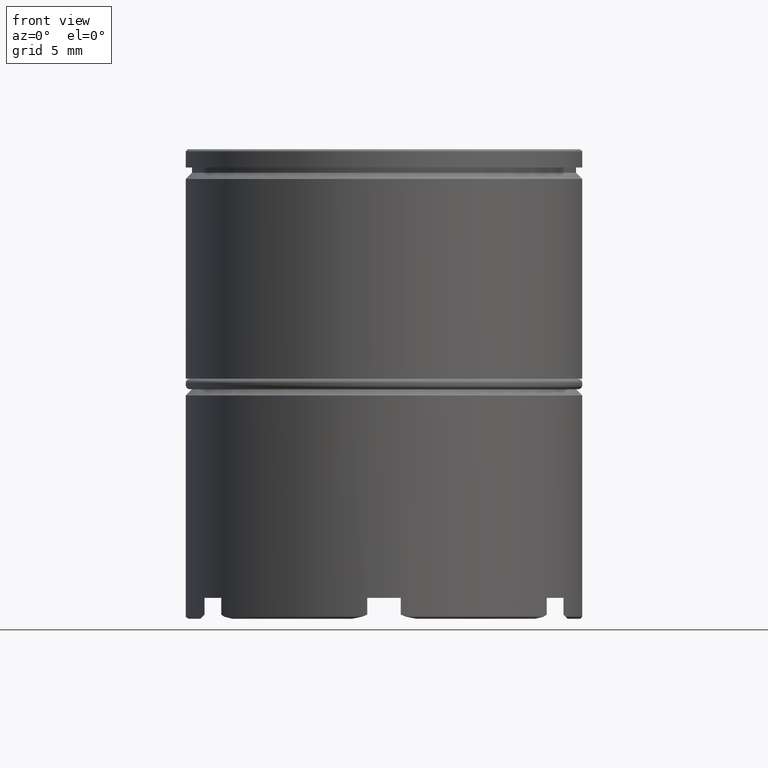
[diagram: clean part render]
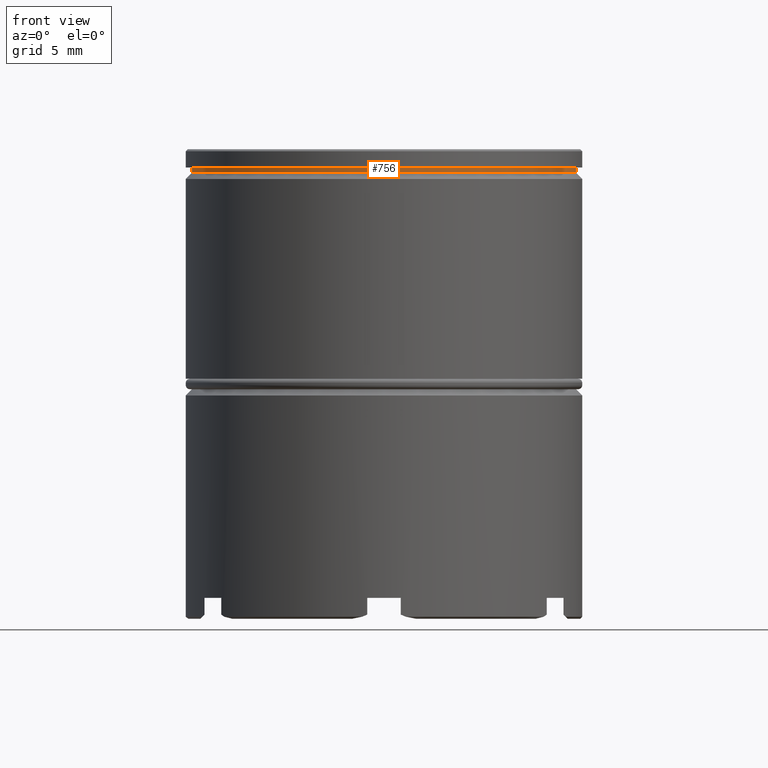
[diagram: same view with one face highlighted and labeled with its STEP entity id]
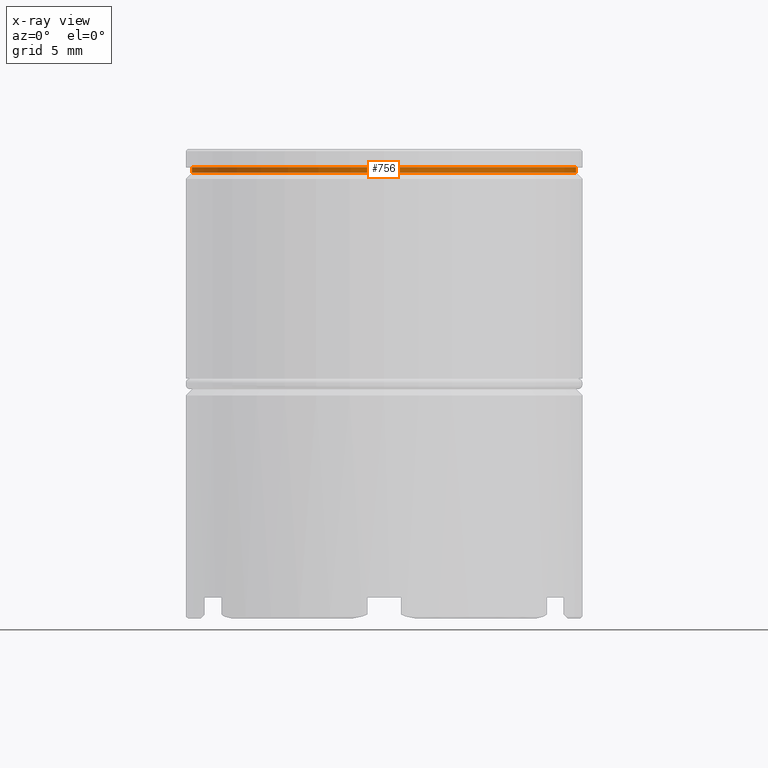
[diagram: x-ray of the same camera — body ghosted, the highlighted face saturated]
A machine part, front view. The second image highlights one B-rep face of the part: STEP entity #756.
The next image is the same camera in x-ray: the body ghosted, the highlighted face saturated — about 0% of this face is hidden behind the body in this view.
In plain terms, the highlighted cylindrical surface (partial cylindrical patch) has radius 9.2 mm, axis along (-0, -0, 1).
Its self-contained STEP definition (entity closure, byte-faithful):
#44 = CARTESIAN_POINT ( 'NONE',  ( -9.199999999999999289, 1.126675055215564822E-15, 0.000000000000000000 ) ) ;
#96 = VERTEX_POINT ( 'NONE', #869 ) ;
#114 = EDGE_CURVE ( 'NONE', #96, #443, #609, .T. ) ;
#164 = LINE ( 'NONE', #1015, #739 ) ;
#196 = ORIENTED_EDGE ( 'NONE', *, *, #114, .T. ) ;
#199 = FACE_OUTER_BOUND ( 'NONE', #1175, .T. ) ;
#226 = CARTESIAN_POINT ( 'NONE',  ( 9.199999999999999289, 0.000000000000000000, -1.125000000000000222 ) ) ;
#298 = VECTOR ( 'NONE', #1112, 1000.000000000000000 ) ;
#335 = DIRECTION ( 'NONE',  ( -0.000000000000000000, -0.000000000000000000, 1.000000000000000000 ) ) ;
#372 = LINE ( 'NONE', #44, #298 ) ;
#400 = DIRECTION ( 'NONE',  ( 1.000000000000000000, 0.000000000000000000, 0.000000000000000000 ) ) ;
#408 = CARTESIAN_POINT ( 'NONE',  ( -9.199999999999999289, 1.126675055215564822E-15, -0.8749999999999998890 ) ) ;
#427 = VERTEX_POINT ( 'NONE', #408 ) ;
#443 = VERTEX_POINT ( 'NONE', #226 ) ;
#574 = EDGE_CURVE ( 'NONE', #427, #626, #1477, .T. ) ;
#609 = CIRCLE ( 'NONE', #890, 9.199999999999999289 ) ;
#626 = VERTEX_POINT ( 'NONE', #1404 ) ;
#726 = DIRECTION ( 'NONE',  ( 1.000000000000000000, 0.000000000000000000, 0.000000000000000000 ) ) ;
#739 = VECTOR ( 'NONE', #1008, 1000.000000000000000 ) ;
#756 = ADVANCED_FACE ( 'NONE', ( #199 ), #1163, .T. ) ;
#789 = AXIS2_PLACEMENT_3D ( 'NONE', #1551, #805, #400 ) ;
#805 = DIRECTION ( 'NONE',  ( -0.000000000000000000, -0.000000000000000000, 1.000000000000000000 ) ) ;
#823 = EDGE_CURVE ( 'NONE', #96, #427, #372, .T. ) ;
#831 = ORIENTED_EDGE ( 'NONE', *, *, #823, .F. ) ;
#839 = DIRECTION ( 'NONE',  ( 1.000000000000000000, 0.000000000000000000, 0.000000000000000000 ) ) ;
#855 = EDGE_CURVE ( 'NONE', #443, #626, #164, .T. ) ;
#856 = CARTESIAN_POINT ( 'NONE',  ( 0.000000000000000000, 0.000000000000000000, -1.125000000000000222 ) ) ;
#869 = CARTESIAN_POINT ( 'NONE',  ( -9.199999999999999289, 1.126675055215564822E-15, -1.125000000000000222 ) ) ;
#890 = AXIS2_PLACEMENT_3D ( 'NONE', #856, #1352, #726 ) ;
#991 = AXIS2_PLACEMENT_3D ( 'NONE', #1466, #335, #839 ) ;
#1008 = DIRECTION ( 'NONE',  ( -0.000000000000000000, -0.000000000000000000, 1.000000000000000000 ) ) ;
#1015 = CARTESIAN_POINT ( 'NONE',  ( 9.199999999999999289, 0.000000000000000000, 0.000000000000000000 ) ) ;
#1112 = DIRECTION ( 'NONE',  ( -0.000000000000000000, -0.000000000000000000, 1.000000000000000000 ) ) ;
#1163 = CYLINDRICAL_SURFACE ( 'NONE', #991, 9.199999999999999289 ) ;
#1175 = EDGE_LOOP ( 'NONE', ( #831, #196, #1368, #1613 ) ) ;
#1352 = DIRECTION ( 'NONE',  ( -0.000000000000000000, -0.000000000000000000, 1.000000000000000000 ) ) ;
#1368 = ORIENTED_EDGE ( 'NONE', *, *, #855, .T. ) ;
#1404 = CARTESIAN_POINT ( 'NONE',  ( 9.199999999999999289, 0.000000000000000000, -0.8749999999999998890 ) ) ;
#1466 = CARTESIAN_POINT ( 'NONE',  ( 0.000000000000000000, 0.000000000000000000, 0.000000000000000000 ) ) ;
#1477 = CIRCLE ( 'NONE', #789, 9.199999999999999289 ) ;
#1551 = CARTESIAN_POINT ( 'NONE',  ( 0.000000000000000000, 0.000000000000000000, -0.8749999999999998890 ) ) ;
#1613 = ORIENTED_EDGE ( 'NONE', *, *, #574, .F. ) ;